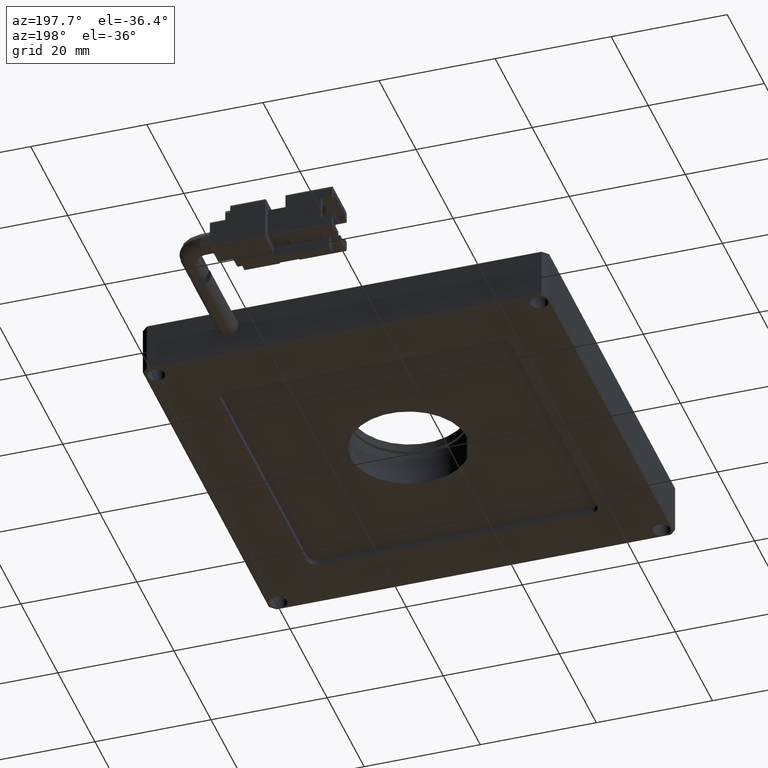
[diagram: clean part render]
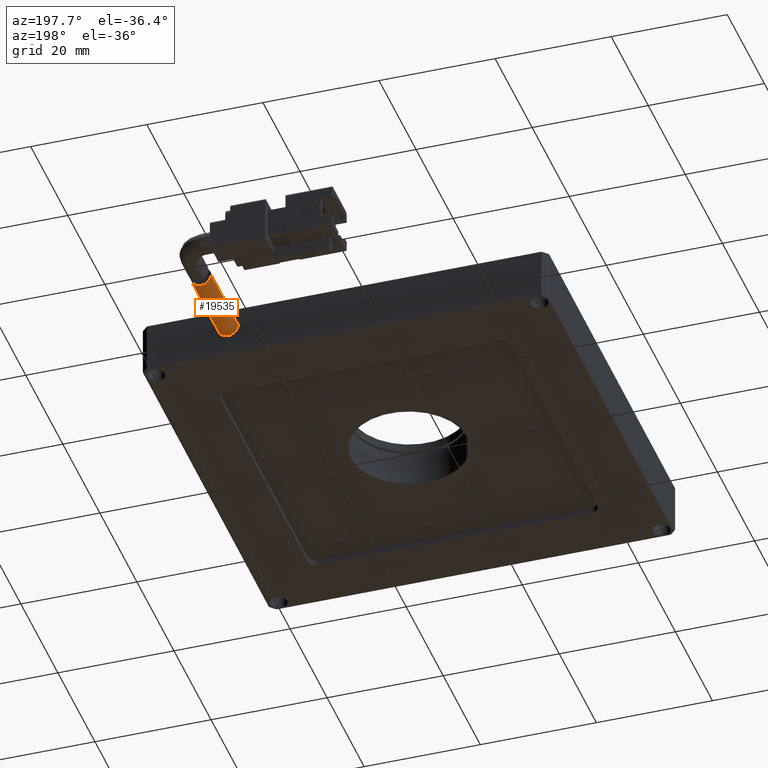
[diagram: same view with one face highlighted and labeled with its STEP entity id]
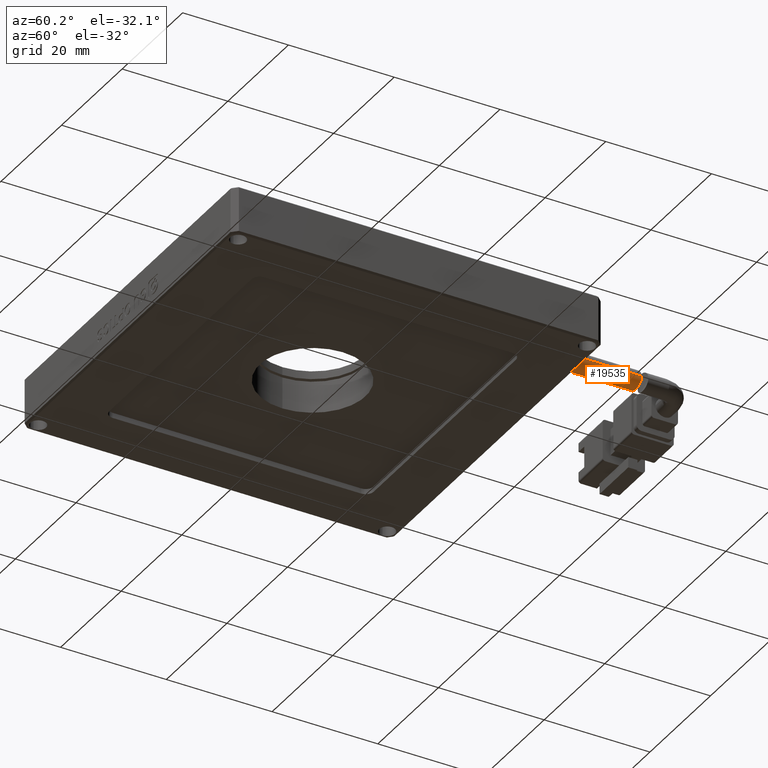
[diagram: same view with one face highlighted and labeled with its STEP entity id]
A machine part, auxiliary view. The second image highlights one B-rep face of the part: STEP entity #19535.
A second angle (auxiliary view) of the same face is appended — the face is thin or edge-on in the first view.
In plain terms, the highlighted cylindrical surface (edge-blend (fillet) strip) has radius 1.75 mm, axis along (0, -1, 0).
Its self-contained STEP definition (entity closure, byte-faithful):
#134 = CARTESIAN_POINT ( 'NONE',  ( 9.283692893400997900, 72.53591370558376600, 2.499999999999999600 ) ) ;
#205 = CARTESIAN_POINT ( 'NONE',  ( 9.283692893400996100, 87.31675363808106700, 2.500000000000000000 ) ) ;
#368 = CARTESIAN_POINT ( 'NONE',  ( 5.783692893400999700, 87.27963314474406800, 2.499999999999999600 ) ) ;
#736 = CARTESIAN_POINT ( 'NONE',  ( 5.783692893401001500, 87.27963314474408200, 2.383923733012482500 ) ) ;
#804 = CARTESIAN_POINT ( 'NONE',  ( 5.795125867308645900, 87.27617583041383400, 2.269916528673474600 ) ) ;
#1388 = CARTESIAN_POINT ( 'NONE',  ( 6.015070837138541300, 87.21717902946288300, 1.622898425157614200 ) ) ;
#2158 = CARTESIAN_POINT ( 'NONE',  ( 5.783692893400998800, 92.53591370558376600, 2.499999999999999600 ) ) ;
#2344 = EDGE_CURVE ( 'NONE', #17875, #17195, #19804, .T. ) ;
#3061 = CARTESIAN_POINT ( 'NONE',  ( 6.141824505594333200, 87.18888617685038900, 1.433124883886459000 ) ) ;
#3137 = CARTESIAN_POINT ( 'NONE',  ( 7.533692893400998800, 92.53591370558376600, 2.499999999999999600 ) ) ;
#3140 = CARTESIAN_POINT ( 'NONE',  ( 7.647412367812100000, 87.09188387440269700, 0.7499424972445346600 ) ) ;
#3411 = CARTESIAN_POINT ( 'NONE',  ( 8.923233507894446200, 87.24796616752746600, 1.430112628889963500 ) ) ;
#3477 = CARTESIAN_POINT ( 'NONE',  ( 9.105367645551460500, 87.28166892497377200, 1.721898173489206000 ) ) ;
#4387 = FACE_OUTER_BOUND ( 'NONE', #11605, .T. ) ;
#4497 = LINE ( 'NONE', #14418, #17063 ) ;
#4600 = ORIENTED_EDGE ( 'NONE', *, *, #5417, .T. ) ;
#4861 = CARTESIAN_POINT ( 'NONE',  ( 7.072443422606522900, 87.08077833136782400, 0.7965229567925741200 ) ) ;
#5212 = CARTESIAN_POINT ( 'NONE',  ( 9.237321890908127400, 87.30721451082843000, 2.038953196826492700 ) ) ;
#5417 = EDGE_CURVE ( 'NONE', #8992, #17195, #14369, .T. ) ;
#5515 = VERTEX_POINT ( 'NONE', #9505 ) ;
#5946 = ORIENTED_EDGE ( 'NONE', *, *, #2344, .F. ) ;
#6017 = DIRECTION ( 'NONE',  ( -1.000000000000000000, 0.0000000000000000000, 0.0000000000000000000 ) ) ;
#6228 = CARTESIAN_POINT ( 'NONE',  ( 5.873612342898662000, 87.25365909683586100, 1.934548446059109800 ) ) ;
#6434 = DIRECTION ( 'NONE',  ( 0.0000000000000000000, -1.000000000000000000, 0.0000000000000000000 ) ) ;
#6440 = CARTESIAN_POINT ( 'NONE',  ( 6.650991591365596800, 87.10747189790794200, 0.9717907465180347600 ) ) ;
#6648 = CARTESIAN_POINT ( 'NONE',  ( 9.050230990242498700, 87.27117526168970600, 1.619321677900533900 ) ) ;
#6822 = CARTESIAN_POINT ( 'NONE',  ( 8.607445882395911200, 87.19454194195216700, 1.099225859134221400 ) ) ;
#7515 = CARTESIAN_POINT ( 'NONE',  ( 5.839799577660306400, 87.26326324957268800, 2.045820362761305000 ) ) ;
#7942 = CYLINDRICAL_SURFACE ( 'NONE', #10507, 1.749999999999999800 ) ;
#8694 = CARTESIAN_POINT ( 'NONE',  ( 5.783692893400998800, 72.53591370558376600, 2.499999999999999600 ) ) ;
#8738 = VECTOR ( 'NONE', #11989, 1000.000000000000000 ) ;
#8992 = VERTEX_POINT ( 'NONE', #134 ) ;
#9505 = CARTESIAN_POINT ( 'NONE',  ( 9.283692893400996100, 87.31675363808106700, 2.500000000000000000 ) ) ;
#9708 = CARTESIAN_POINT ( 'NONE',  ( 6.215270633200740100, 87.17397269824587600, 1.343636879483786300 ) ) ;
#10061 = EDGE_CURVE ( 'NONE', #17875, #5515, #10435, .T. ) ;
#10188 = CARTESIAN_POINT ( 'NONE',  ( 8.850995387490847600, 87.23516816097847500, 1.342257559800922500 ) ) ;
#10435 = B_SPLINE_CURVE_WITH_KNOTS ( 'NONE', 3,
 ( #368, #736, #804, #7515, #6228, #11137, #1388, #3061, #9708, #16542, #6440, #4861, #18214, #3140, #16246, #11512, #17995, #17655, #6822, #10188, #3411, #6648, #3477, #5212, #16676, #205 ),
 .UNSPECIFIED., .F., .F.,
 ( 4, 2, 2, 2, 2, 2, 2, 2, 2, 2, 2, 2, 4 ),
 ( 0.005490571999675045500, 0.005833718808239130900, 0.006176865616803215400, 0.006520012425367300800, 0.006863159233931386200, 0.007549452851059561300, 0.008235746468187735500, 0.008578893276751823500, 0.008922040085315909700, 0.009608333702444073500, 0.009951480511008158100, 0.01029462731957224300, 0.01098092093670041700 ),
 .UNSPECIFIED. ) ;
#10507 = AXIS2_PLACEMENT_3D ( 'NONE', #3137, #6434, #11361 ) ;
#10713 = EDGE_CURVE ( 'NONE', #5515, #8992, #4497, .T. ) ;
#10721 = CARTESIAN_POINT ( 'NONE',  ( 5.783692893400999700, 87.27963314474406800, 2.499999999999999600 ) ) ;
#10858 = DIRECTION ( 'NONE',  ( -0.0000000000000000000, 1.000000000000000000, -0.0000000000000000000 ) ) ;
#11137 = CARTESIAN_POINT ( 'NONE',  ( 5.961414590836603200, 87.23057232460531900, 1.723119164031233100 ) ) ;
#11358 = ORIENTED_EDGE ( 'NONE', *, *, #10061, .T. ) ;
#11361 = DIRECTION ( 'NONE',  ( -1.000000000000000000, 0.0000000000000000000, 0.0000000000000000000 ) ) ;
#11512 = CARTESIAN_POINT ( 'NONE',  ( 7.987860444632483200, 87.11731689990507700, 0.8060988745667142500 ) ) ;
#11605 = EDGE_LOOP ( 'NONE', ( #11358, #21234, #4600, #5946 ) ) ;
#11989 = DIRECTION ( 'NONE',  ( 0.0000000000000000000, -1.000000000000000000, 0.0000000000000000000 ) ) ;
#12242 = CARTESIAN_POINT ( 'NONE',  ( 7.533692893400998800, 72.53591370558376600, 2.499999999999999600 ) ) ;
#13698 = AXIS2_PLACEMENT_3D ( 'NONE', #12242, #10858, #6017 ) ;
#14369 = CIRCLE ( 'NONE', #13698, 1.749999999999999800 ) ;
#14418 = CARTESIAN_POINT ( 'NONE',  ( 9.283692893400997900, 92.53591370558376600, 2.499999999999999600 ) ) ;
#16246 = CARTESIAN_POINT ( 'NONE',  ( 7.763629377957539800, 87.09908745143774000, 0.7614090761753261600 ) ) ;
#16277 = DIRECTION ( 'NONE',  ( 0.0000000000000000000, -1.000000000000000000, 0.0000000000000000000 ) ) ;
#16542 = CARTESIAN_POINT ( 'NONE',  ( 6.456194948723058300, 87.13213201537873000, 1.102448616356782200 ) ) ;
#16676 = CARTESIAN_POINT ( 'NONE',  ( 9.283692893400994400, 87.31675363808105300, 2.267903630600319100 ) ) ;
#17063 = VECTOR ( 'NONE', #16277, 1000.000000000000000 ) ;
#17195 = VERTEX_POINT ( 'NONE', #8694 ) ;
#17655 = CARTESIAN_POINT ( 'NONE',  ( 8.415335802502562900, 87.16545841168492400, 0.9709568532354124800 ) ) ;
#17875 = VERTEX_POINT ( 'NONE', #10721 ) ;
#17995 = CARTESIAN_POINT ( 'NONE',  ( 8.096973797391372700, 87.12835028261707700, 0.8391549096441921500 ) ) ;
#18214 = CARTESIAN_POINT ( 'NONE',  ( 7.303609508152738300, 87.07853314934604300, 0.7501156715151637800 ) ) ;
#19535 = ADVANCED_FACE ( 'NONE', ( #4387 ), #7942, .T. ) ;
#19804 = LINE ( 'NONE', #2158, #8738 ) ;
#21234 = ORIENTED_EDGE ( 'NONE', *, *, #10713, .T. ) ;